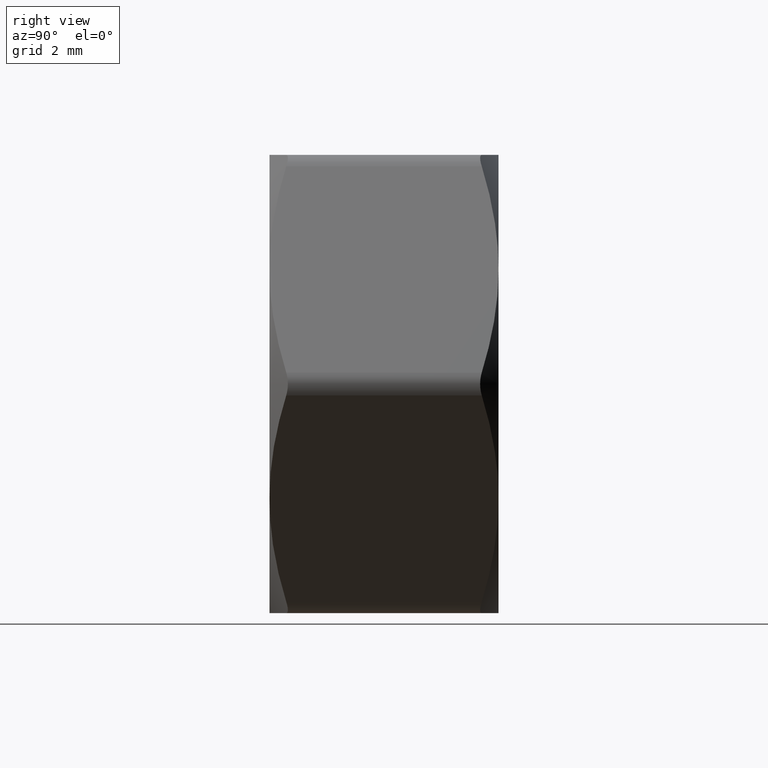
[diagram: clean part render]
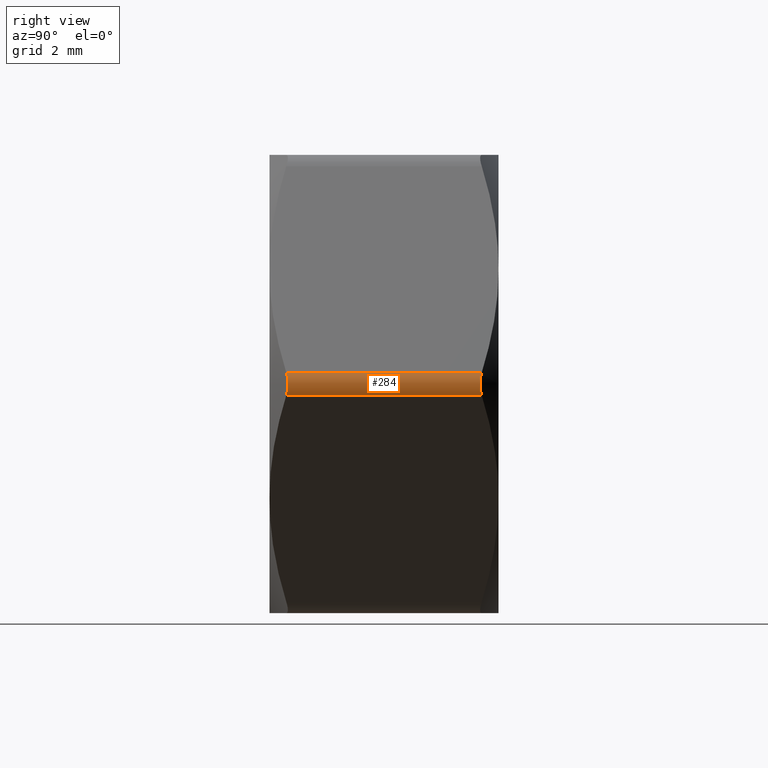
[diagram: same view with one face highlighted and labeled with its STEP entity id]
A machine part, right view. The second image highlights one B-rep face of the part: STEP entity #284.
In plain terms, the highlighted cylindrical surface (edge-blend (fillet) strip) has radius 0.5 mm, axis along (0, -1, 0).
Its self-contained STEP definition (entity closure, byte-faithful):
#79 = CARTESIAN_POINT ( 'NONE',  ( 5.629165124600557800, -2.133547796623369600, -0.2499999999970449500 ) ) ;
#138 = CARTESIAN_POINT ( 'NONE',  ( 5.672189980987818500, 2.110640764794212500, -0.1754787627459573300 ) ) ;
#218 = VERTEX_POINT ( 'NONE', #780 ) ;
#252 = CARTESIAN_POINT ( 'NONE',  ( 5.629165124598853400, -2.133547796624276800, 0.2500000000000047200 ) ) ;
#280 = VERTEX_POINT ( 'NONE', #385 ) ;
#284 = ADVANCED_FACE ( 'NONE', ( #1590 ), #1555, .T. ) ;
#377 = CARTESIAN_POINT ( 'NONE',  ( 5.672176000091755400, -2.110648208416782800, -0.1755029783682724400 ) ) ;
#385 = CARTESIAN_POINT ( 'NONE',  ( 5.629165124600557800, -2.133547796623369600, -0.2499999999970449500 ) ) ;
#389 = ORIENTED_EDGE ( 'NONE', *, *, #864, .F. ) ;
#469 = EDGE_CURVE ( 'NONE', #280, #677, #1132, .T. ) ;
#504 = DIRECTION ( 'NONE',  ( -0.0000000000000000000, 1.000000000000000000, -0.0000000000000000000 ) ) ;
#520 = AXIS2_PLACEMENT_3D ( 'NONE', #1597, #1721, #1051 ) ;
#547 = EDGE_LOOP ( 'NONE', ( #1664, #1394, #1405, #389 ) ) ;
#555 = CARTESIAN_POINT ( 'NONE',  ( 5.696075590801037900, 2.098116676514131900, 0.08841851701548307500 ) ) ;
#638 = CARTESIAN_POINT ( 'NONE',  ( 5.629165124600557800, 2.133547796623369600, 0.2499999999970531900 ) ) ;
#677 = VERTEX_POINT ( 'NONE', #252 ) ;
#743 = EDGE_CURVE ( 'NONE', #677, #793, #1277, .T. ) ;
#769 = CARTESIAN_POINT ( 'NONE',  ( 5.696228875202474600, -2.098035946016741700, 0.08754741462736166700 ) ) ;
#780 = CARTESIAN_POINT ( 'NONE',  ( 5.629165124598854300, 2.133547796624276800, -0.2499999999999959500 ) ) ;
#793 = VERTEX_POINT ( 'NONE', #638 ) ;
#864 = EDGE_CURVE ( 'NONE', #218, #280, #1694, .T. ) ;
#1051 = DIRECTION ( 'NONE',  ( 0.0000000000000000000, 0.0000000000000000000, -1.000000000000000000 ) ) ;
#1090 = CARTESIAN_POINT ( 'NONE',  ( 5.672176000091755400, 2.110648208416783200, 0.1755029783682805200 ) ) ;
#1132 = B_SPLINE_CURVE_WITH_KNOTS ( 'NONE', 3,
 ( #79, #377, #1320, #769, #1717, #1481 ),
 .UNSPECIFIED., .F., .F.,
 ( 4, 2, 4 ),
 ( 3.307764964376743700E-015, 0.0002635016616933986100, 0.0005270033233834895400 ),
 .UNSPECIFIED. ) ;
#1188 = VECTOR ( 'NONE', #504, 1000.000000000000000 ) ;
#1202 = DIRECTION ( 'NONE',  ( 0.0000000000000000000, -1.000000000000000000, 0.0000000000000000000 ) ) ;
#1221 = B_SPLINE_CURVE_WITH_KNOTS ( 'NONE', 3,
 ( #1635, #1090, #555, #1641, #138, #1237 ),
 .UNSPECIFIED., .F., .F.,
 ( 4, 2, 4 ),
 ( 3.307356111290569800E-015, 0.0002635016616933980100, 0.0005270033233834886700 ),
 .UNSPECIFIED. ) ;
#1237 = CARTESIAN_POINT ( 'NONE',  ( 5.629165124598854300, 2.133547796624276800, -0.2499999999999959500 ) ) ;
#1277 = LINE ( 'NONE', #1323, #1188 ) ;
#1320 = CARTESIAN_POINT ( 'NONE',  ( 5.696075590801037900, -2.098116676514132400, -0.08841851701547436000 ) ) ;
#1323 = CARTESIAN_POINT ( 'NONE',  ( 5.629165124598854300, 2.500000000000000000, 0.2500000000000036600 ) ) ;
#1394 = ORIENTED_EDGE ( 'NONE', *, *, #743, .F. ) ;
#1405 = ORIENTED_EDGE ( 'NONE', *, *, #469, .F. ) ;
#1481 = CARTESIAN_POINT ( 'NONE',  ( 5.629165124598853400, -2.133547796624276800, 0.2500000000000047200 ) ) ;
#1533 = EDGE_CURVE ( 'NONE', #793, #218, #1221, .T. ) ;
#1555 = CYLINDRICAL_SURFACE ( 'NONE', #520, 0.5000000000000000000 ) ;
#1588 = VECTOR ( 'NONE', #1202, 1000.000000000000000 ) ;
#1590 = FACE_OUTER_BOUND ( 'NONE', #547, .T. ) ;
#1597 = CARTESIAN_POINT ( 'NONE',  ( 5.196152422706634700, 2.500000000000000000, 4.391018798566293000E-015 ) ) ;
#1635 = CARTESIAN_POINT ( 'NONE',  ( 5.629165124600557800, 2.133547796623369600, 0.2499999999970531900 ) ) ;
#1641 = CARTESIAN_POINT ( 'NONE',  ( 5.696228875202474600, 2.098035946016742100, -0.08754741462735285400 ) ) ;
#1664 = ORIENTED_EDGE ( 'NONE', *, *, #1533, .F. ) ;
#1694 = LINE ( 'NONE', #1725, #1588 ) ;
#1717 = CARTESIAN_POINT ( 'NONE',  ( 5.672189980987818500, -2.110640764794212500, 0.1754787627459657400 ) ) ;
#1721 = DIRECTION ( 'NONE',  ( 0.0000000000000000000, -1.000000000000000000, 0.0000000000000000000 ) ) ;
#1725 = CARTESIAN_POINT ( 'NONE',  ( 5.629165124598854300, 2.500000000000000000, -0.2499999999999960600 ) ) ;